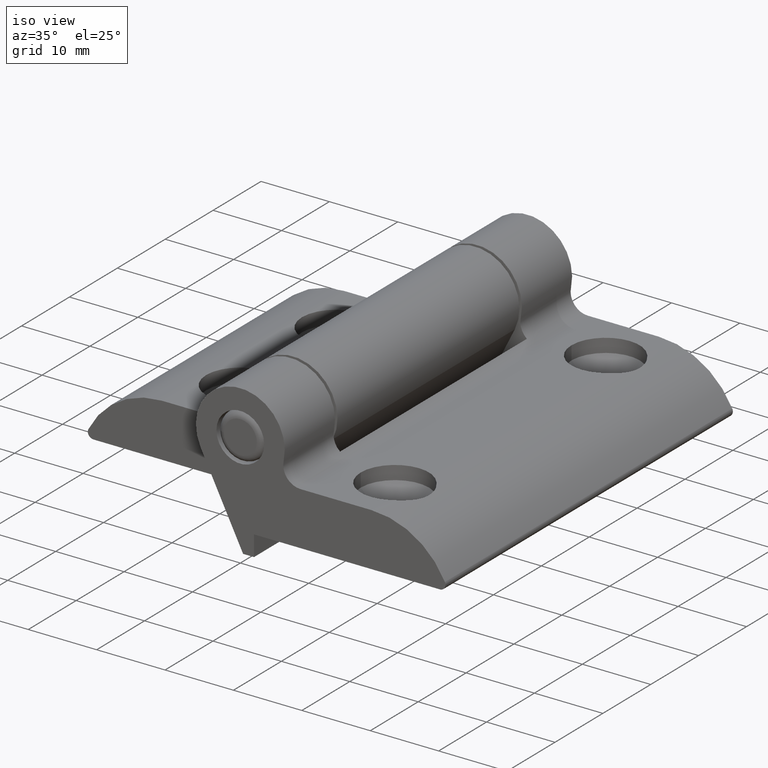
[diagram: clean part render]
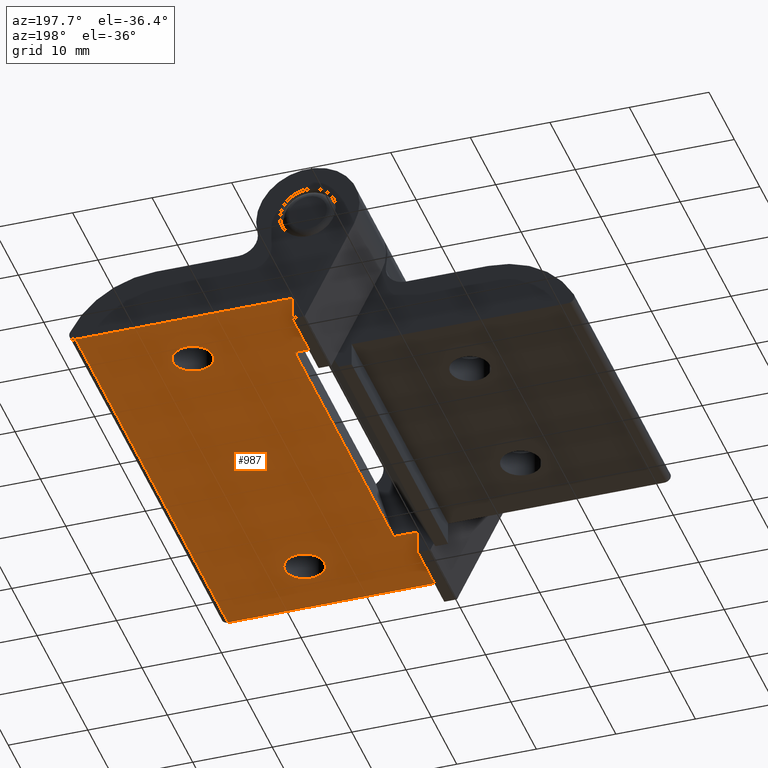
[diagram: tour spotlight — one face highlighted and labeled with its STEP entity id]
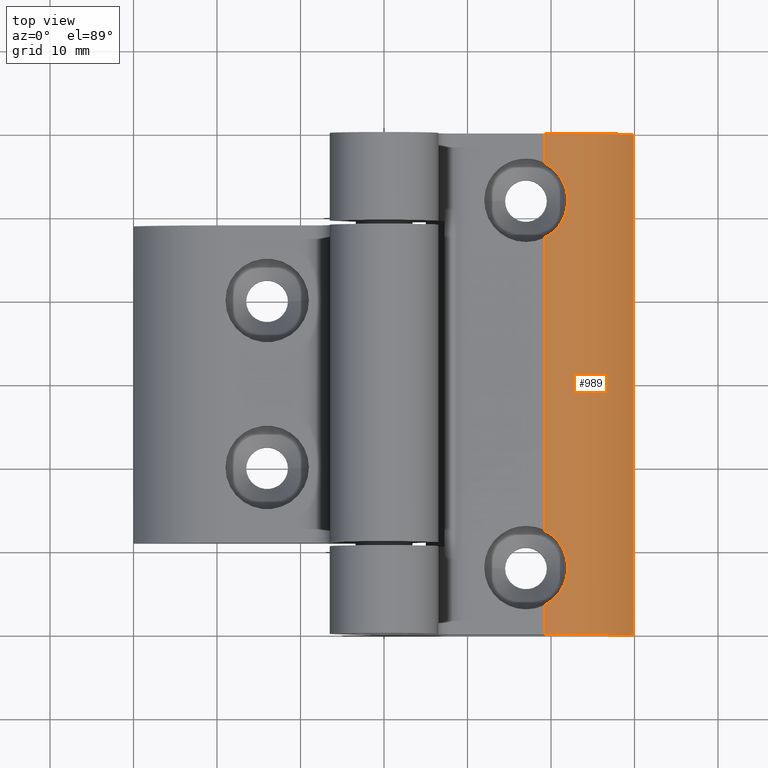
[diagram: tour spotlight — one face highlighted and labeled with its STEP entity id]
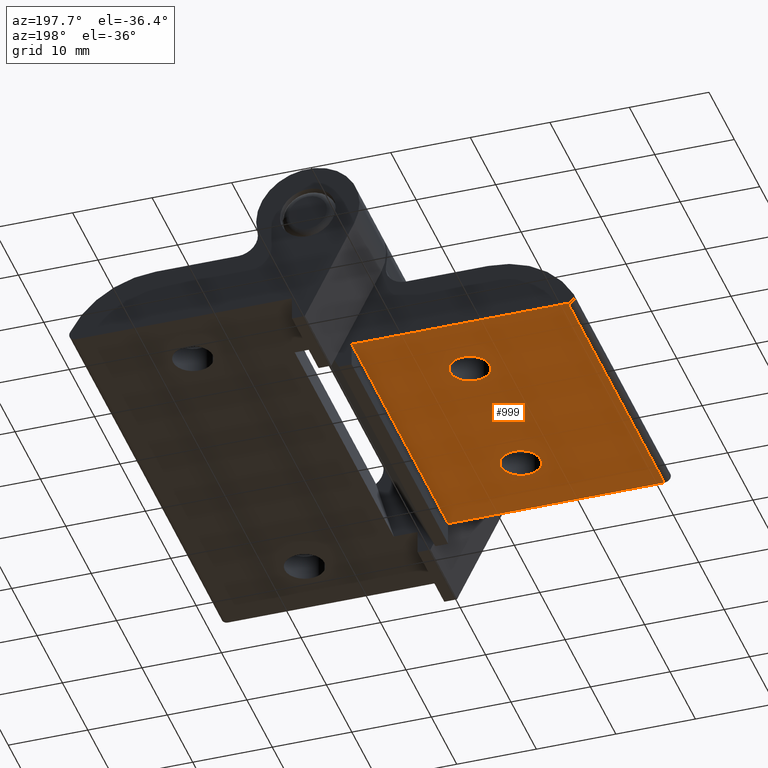
[diagram: tour spotlight — one face highlighted and labeled with its STEP entity id]
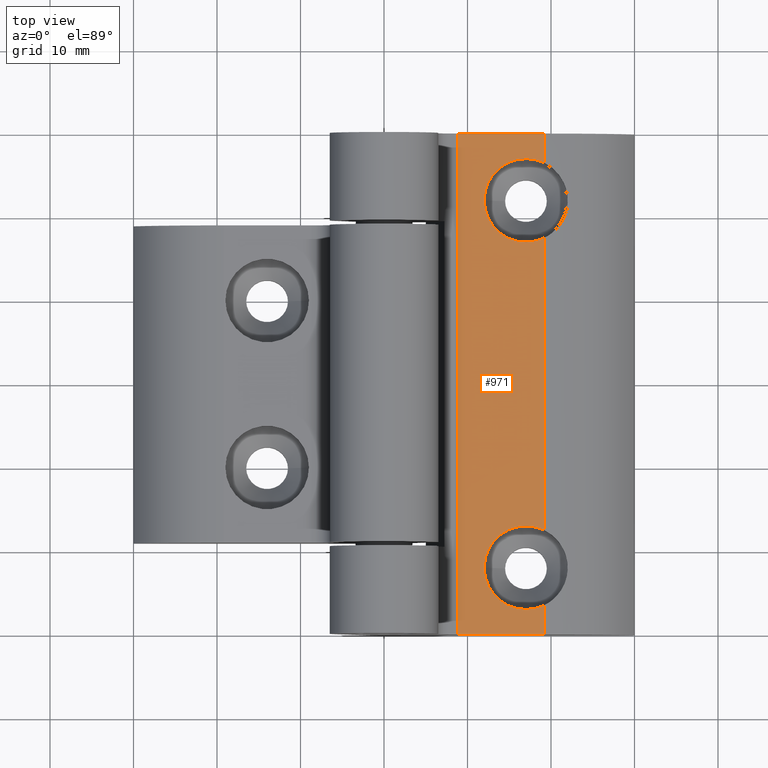
[diagram: tour spotlight — one face highlighted and labeled with its STEP entity id]
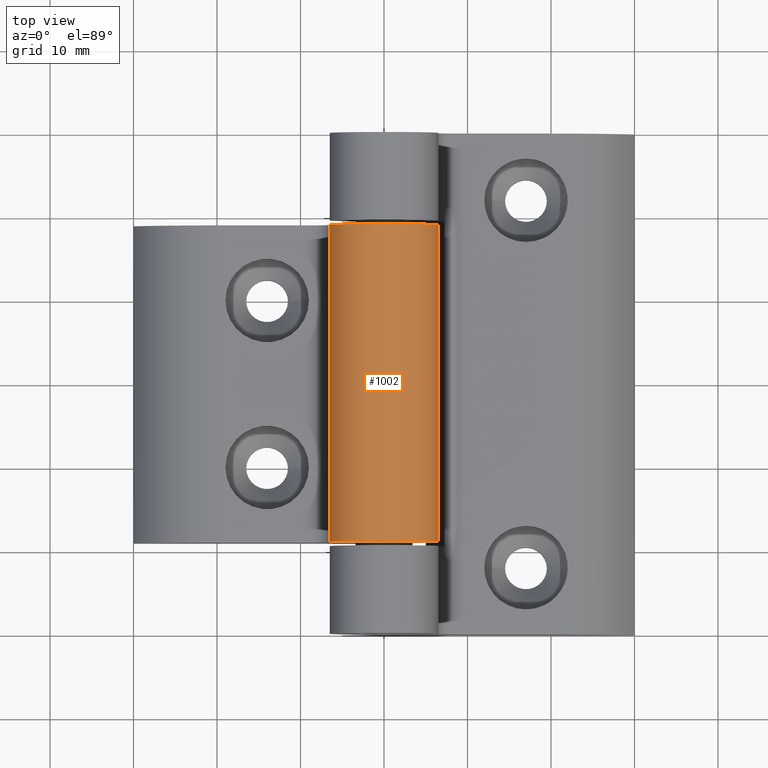
[diagram: tour spotlight — one face highlighted and labeled with its STEP entity id]
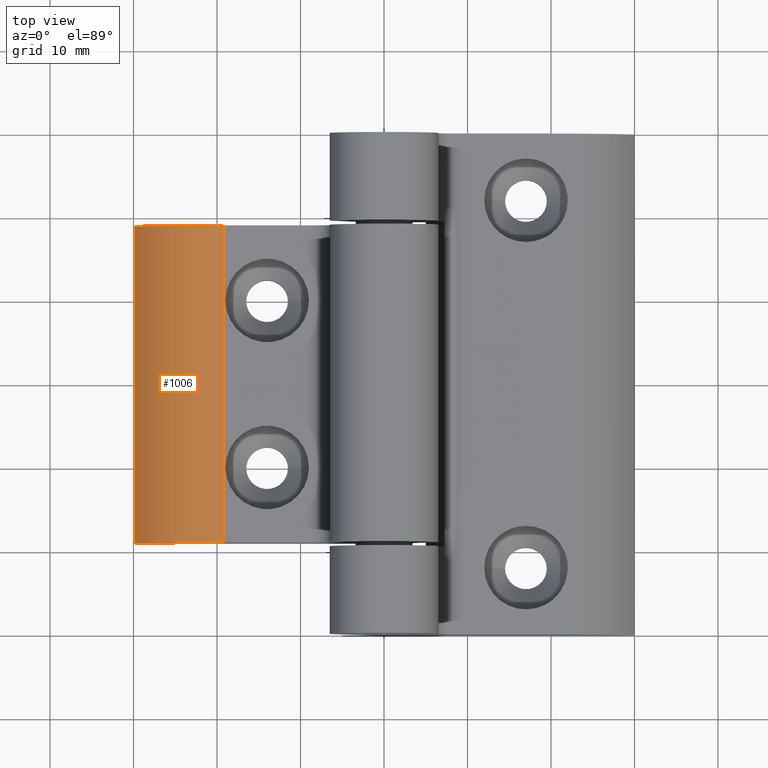
[diagram: tour spotlight — one face highlighted and labeled with its STEP entity id]
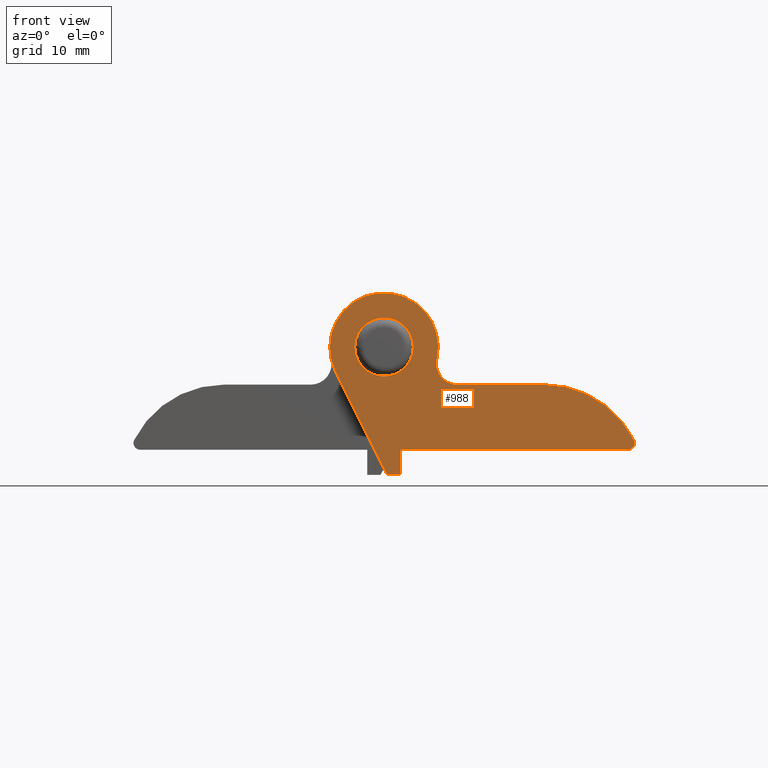
[diagram: tour spotlight — one face highlighted and labeled with its STEP entity id]
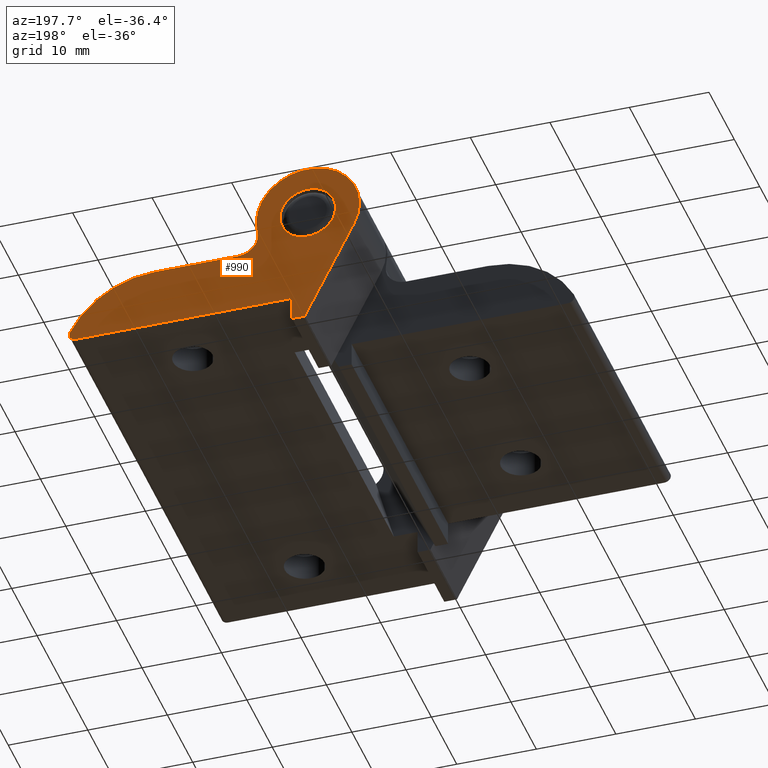
[diagram: tour spotlight — one face highlighted and labeled with its STEP entity id]
A machine part: a face-by-face anatomy tour. The part has 49 B-rep faces; the first image is the clean iso view, then the 8 largest visible faces are spotlighted one at a time (largest first), each with its STEP entity span.

Face 1 — auxiliary view, entity #987. In plain terms, the highlighted planar face has unit normal (0, 0, -1).
Definition (entity closure, byte-faithful):
#41=FACE_BOUND('',#180,.T.);
#42=FACE_BOUND('',#181,.T.);
#61=PLANE('',#1154);
#76=B_SPLINE_CURVE_WITH_KNOTS('',3,(#1733,#1734,#1735,#1736),
 .UNSPECIFIED.,.F.,.F.,(4,4),(-6.,0.),.UNSPECIFIED.);
#128=FACE_OUTER_BOUND('',#179,.T.);
#179=EDGE_LOOP('',(#792,#793,#794,#795,#796,#797,#798,#799));
#180=EDGE_LOOP('',(#800));
#181=EDGE_LOOP('',(#801));
#229=LINE('',#1617,#298);
#233=LINE('',#1631,#302);
#239=LINE('',#1646,#308);
#240=LINE('',#1653,#309);
#245=LINE('',#1662,#314);
#258=LINE('',#1759,#327);
#259=LINE('',#1760,#328);
#298=VECTOR('',#1283,10.);
#302=VECTOR('',#1295,10.);
#308=VECTOR('',#1307,10.);
#309=VECTOR('',#1314,10.);
#314=VECTOR('',#1321,10.);
#327=VECTOR('',#1368,10.);
#328=VECTOR('',#1369,10.);
#358=CIRCLE('',#1110,2.5);
#363=CIRCLE('',#1117,2.5);
#422=VERTEX_POINT('',#1538);
#427=VERTEX_POINT('',#1552);
#440=VERTEX_POINT('',#1614);
#441=VERTEX_POINT('',#1616);
#447=VERTEX_POINT('',#1630);
#453=VERTEX_POINT('',#1644);
#456=VERTEX_POINT('',#1652);
#459=VERTEX_POINT('',#1660);
#470=VERTEX_POINT('',#1725);
#471=VERTEX_POINT('',#1732);
#526=EDGE_CURVE('',#422,#422,#358,.T.);
#533=EDGE_CURVE('',#427,#427,#363,.T.);
#550=EDGE_CURVE('',#441,#440,#229,.T.);
#557=EDGE_CURVE('',#440,#447,#233,.T.);
#565=EDGE_CURVE('',#447,#453,#239,.T.);
#568=EDGE_CURVE('',#456,#441,#240,.T.);
#573=EDGE_CURVE('',#453,#459,#245,.T.);
#594=EDGE_CURVE('',#470,#471,#76,.T.);
#599=EDGE_CURVE('',#471,#459,#258,.T.);
#600=EDGE_CURVE('',#456,#470,#259,.T.);
#792=ORIENTED_EDGE('',*,*,#565,.T.);
#793=ORIENTED_EDGE('',*,*,#573,.T.);
#794=ORIENTED_EDGE('',*,*,#599,.F.);
#795=ORIENTED_EDGE('',*,*,#594,.F.);
#796=ORIENTED_EDGE('',*,*,#600,.F.);
#797=ORIENTED_EDGE('',*,*,#568,.T.);
#798=ORIENTED_EDGE('',*,*,#550,.T.);
#799=ORIENTED_EDGE('',*,*,#557,.T.);
#800=ORIENTED_EDGE('',*,*,#526,.T.);
#801=ORIENTED_EDGE('',*,*,#533,.T.);
#987=ADVANCED_FACE('',(#128,#41,#42),#61,.T.);
#1110=AXIS2_PLACEMENT_3D('',#1540,#1238,#1239);
#1117=AXIS2_PLACEMENT_3D('',#1554,#1254,#1255);
#1154=AXIS2_PLACEMENT_3D('',#1758,#1366,#1367);
#1238=DIRECTION('center_axis',(0.,0.,1.));
#1239=DIRECTION('ref_axis',(1.,0.,-2.13294600378817E-16));
#1254=DIRECTION('center_axis',(0.,0.,1.));
#1255=DIRECTION('ref_axis',(1.,0.,-2.13294600378817E-16));
#1283=DIRECTION('',(1.,0.,0.));
#1295=DIRECTION('',(0.,1.,0.));
#1307=DIRECTION('',(-1.,0.,0.));
#1314=DIRECTION('',(0.,1.,0.));
#1321=DIRECTION('',(0.,1.,0.));
#1366=DIRECTION('center_axis',(0.,0.,-1.));
#1367=DIRECTION('ref_axis',(-1.,0.,0.));
#1368=DIRECTION('',(-1.,0.,0.));
#1369=DIRECTION('',(1.,0.,0.));
#1538=CARTESIAN_POINT('',(14.5,22.,-12.3));
#1540=CARTESIAN_POINT('Origin',(17.,22.,-12.3));
#1552=CARTESIAN_POINT('',(14.5,-22.,-12.3));
#1554=CARTESIAN_POINT('Origin',(17.,-22.,-12.3));
#1614=CARTESIAN_POINT('',(5.,-19.5,-12.3));
#1616=CARTESIAN_POINT('',(2.,-19.5,-12.3));
#1617=CARTESIAN_POINT('',(15.3970287649531,-19.5,-12.3));
#1630=CARTESIAN_POINT('',(5.,19.5,-12.3));
#1631=CARTESIAN_POINT('',(5.,0.,-12.3));
#1644=CARTESIAN_POINT('',(2.,19.5,-12.3));
#1646=CARTESIAN_POINT('',(15.3970287649531,19.5,-12.3));
#1652=CARTESIAN_POINT('',(2.,-30.,-12.3));
#1653=CARTESIAN_POINT('',(2.,0.,-12.3));
#1660=CARTESIAN_POINT('',(2.,30.,-12.3));
#1662=CARTESIAN_POINT('',(2.,0.,-12.3));
#1725=CARTESIAN_POINT('',(29.1883954511527,-30.,-12.3));
#1732=CARTESIAN_POINT('',(29.1883954511527,30.,-12.3));
#1733=CARTESIAN_POINT('Ctrl Pts',(29.1883954511527,-30.,-12.3));
#1734=CARTESIAN_POINT('Ctrl Pts',(29.1883954511527,-10.,-12.3));
#1735=CARTESIAN_POINT('Ctrl Pts',(29.1883954511527,10.,-12.3));
#1736=CARTESIAN_POINT('Ctrl Pts',(29.1883954511527,30.,-12.3));
#1758=CARTESIAN_POINT('Origin',(30.,0.,-12.3));
#1759=CARTESIAN_POINT('',(30.,30.,-12.3));
#1760=CARTESIAN_POINT('',(30.,-30.,-12.3));

Face 2 — top view, entity #989. In plain terms, the highlighted cylindrical surface (partial cylindrical patch) has radius 12 mm, axis along (0, 1, 0).
Definition (entity closure, byte-faithful):
#73=B_SPLINE_CURVE_WITH_KNOTS('',3,(#1558,#1559,#1560,#1561,#1562,#1563,
#1564,#1565,#1566,#1567,#1568,#1569,#1570,#1571,#1572),.UNSPECIFIED.,.F.,
 .F.,(4,2,2,3,2,2,4),(-0.538665176497433,-0.380009468662877,-0.190004734331439,
0.,0.190004734331439,0.380009468662877,0.538665176480689),.UNSPECIFIED.);
#74=B_SPLINE_CURVE_WITH_KNOTS('',3,(#1580,#1581,#1582,#1583,#1584,#1585,
#1586,#1587,#1588,#1589,#1590,#1591,#1592,#1593,#1594),.UNSPECIFIED.,.F.,
 .F.,(4,2,2,3,2,2,4),(-0.538665176497433,-0.380009468662877,-0.190004734331439,
0.,0.190004734331439,0.380009468662877,0.53866517648069),.UNSPECIFIED.);
#79=B_SPLINE_CURVE_WITH_KNOTS('',3,(#1750,#1751,#1752,#1753),
 .UNSPECIFIED.,.F.,.F.,(4,4),(0.,6.),.UNSPECIFIED.);
#96=CYLINDRICAL_SURFACE('',#1157,12.);
#130=FACE_OUTER_BOUND('',#184,.T.);
#184=EDGE_LOOP('',(#813,#814,#815,#816,#817,#818,#819,#820));
#222=LINE('',#1600,#291);
#223=LINE('',#1602,#292);
#227=LINE('',#1609,#296);
#291=VECTOR('',#1272,10.);
#292=VECTOR('',#1273,10.);
#296=VECTOR('',#1277,10.);
#383=CIRCLE('',#1156,12.);
#384=CIRCLE('',#1158,12.);
#428=VERTEX_POINT('',#1556);
#429=VERTEX_POINT('',#1557);
#431=VERTEX_POINT('',#1578);
#432=VERTEX_POINT('',#1579);
#434=VERTEX_POINT('',#1601);
#437=VERTEX_POINT('',#1607);
#473=VERTEX_POINT('',#1744);
#474=VERTEX_POINT('',#1749);
#534=EDGE_CURVE('',#428,#429,#73,.T.);
#538=EDGE_CURVE('',#431,#432,#74,.T.);
#542=EDGE_CURVE('',#428,#432,#222,.T.);
#543=EDGE_CURVE('',#431,#434,#223,.T.);
#547=EDGE_CURVE('',#437,#429,#227,.T.);
#597=EDGE_CURVE('',#473,#474,#79,.T.);
#601=EDGE_CURVE('',#474,#437,#383,.T.);
#602=EDGE_CURVE('',#434,#473,#384,.T.);
#813=ORIENTED_EDGE('',*,*,#534,.T.);
#814=ORIENTED_EDGE('',*,*,#547,.F.);
#815=ORIENTED_EDGE('',*,*,#601,.F.);
#816=ORIENTED_EDGE('',*,*,#597,.F.);
#817=ORIENTED_EDGE('',*,*,#602,.F.);
#818=ORIENTED_EDGE('',*,*,#543,.F.);
#819=ORIENTED_EDGE('',*,*,#538,.T.);
#820=ORIENTED_EDGE('',*,*,#542,.F.);
#989=ADVANCED_FACE('',(#130),#96,.T.);
#1156=AXIS2_PLACEMENT_3D('',#1762,#1372,#1373);
#1157=AXIS2_PLACEMENT_3D('',#1763,#1374,#1375);
#1158=AXIS2_PLACEMENT_3D('',#1764,#1376,#1377);
#1272=DIRECTION('',(0.,1.,0.));
#1273=DIRECTION('',(0.,1.,0.));
#1277=DIRECTION('',(0.,1.,0.));
#1372=DIRECTION('center_axis',(0.,-1.,0.));
#1373=DIRECTION('ref_axis',(1.85037170770859E-16,0.,1.));
#1374=DIRECTION('center_axis',(0.,1.,0.));
#1375=DIRECTION('ref_axis',(1.85037170770859E-16,0.,1.));
#1376=DIRECTION('center_axis',(0.,1.,0.));
#1377=DIRECTION('ref_axis',(1.85037170770859E-16,0.,1.));
#1556=CARTESIAN_POINT('',(19.1851953323234,-17.5027873788765,-4.5));
#1557=CARTESIAN_POINT('',(19.1851953323234,-26.4972126211235,-4.5));
#1558=CARTESIAN_POINT('Ctrl Pts',(19.1851953323234,-17.5027873788765,-4.5));
#1559=CARTESIAN_POINT('Ctrl Pts',(19.6882031622358,-17.747198852082,-4.5));
#1560=CARTESIAN_POINT('Ctrl Pts',(20.1461495430295,-18.0783076583834,-4.53260818837594));
#1561=CARTESIAN_POINT('Ctrl Pts',(20.9688320175578,-18.8940406452905,-4.62472499509342));
#1562=CARTESIAN_POINT('Ctrl Pts',(21.3567859401317,-19.4569890827256,-4.69519138891653));
#1563=CARTESIAN_POINT('Ctrl Pts',(21.8724314606675,-20.6931347934501,-4.80179172498823));
#1564=CARTESIAN_POINT('Ctrl Pts',(22.,-21.3666508855619,-4.83480070110991));
#1565=CARTESIAN_POINT('Ctrl Pts',(22.,-22.,-4.83480070110991));
#1566=CARTESIAN_POINT('Ctrl Pts',(22.,-22.6333491144381,-4.83480070110991));
#1567=CARTESIAN_POINT('Ctrl Pts',(21.8724314606675,-23.3068652065499,-4.80179172498823));
#1568=CARTESIAN_POINT('Ctrl Pts',(21.3567859401317,-24.5430109172744,-4.69519138891653));
#1569=CARTESIAN_POINT('Ctrl Pts',(20.9688320175578,-25.1059593547095,-4.62472499509342));
#1570=CARTESIAN_POINT('Ctrl Pts',(20.146149543069,-25.9216923415774,-4.53260818838036));
#1571=CARTESIAN_POINT('Ctrl Pts',(19.6882031620076,-26.252801148029,-4.5));
#1572=CARTESIAN_POINT('Ctrl Pts',(19.1851953323234,-26.4972126211235,-4.5));
#1578=CARTESIAN_POINT('',(19.1851953323234,26.4972126211235,-4.5));
#1579=CARTESIAN_POINT('',(19.1851953323234,17.5027873788765,-4.5));
#1580=CARTESIAN_POINT('Ctrl Pts',(19.1851953323234,26.4972126211235,-4.5));
#1581=CARTESIAN_POINT('Ctrl Pts',(19.6882031622358,26.252801147918,-4.5));
#1582=CARTESIAN_POINT('Ctrl Pts',(20.1461495430295,25.9216923416166,-4.53260818837594));
#1583=CARTESIAN_POINT('Ctrl Pts',(20.9688320175578,25.1059593547095,-4.62472499509342));
#1584=CARTESIAN_POINT('Ctrl Pts',(21.3567859401317,24.5430109172744,-4.69519138891653));
#1585=CARTESIAN_POINT('Ctrl Pts',(21.8724314606675,23.3068652065499,-4.80179172498823));
#1586=CARTESIAN_POINT('Ctrl Pts',(22.,22.6333491144381,-4.83480070110991));
#1587=CARTESIAN_POINT('Ctrl Pts',(22.,22.,-4.83480070110991));
#1588=CARTESIAN_POINT('Ctrl Pts',(22.,21.3666508855619,-4.83480070110991));
#1589=CARTESIAN_POINT('Ctrl Pts',(21.8724314606675,20.6931347934501,-4.80179172498823));
#1590=CARTESIAN_POINT('Ctrl Pts',(21.3567859401317,19.4569890827256,-4.69519138891653));
#1591=CARTESIAN_POINT('Ctrl Pts',(20.9688320175578,18.8940406452905,-4.62472499509342));
#1592=CARTESIAN_POINT('Ctrl Pts',(20.146149543069,18.0783076584226,-4.53260818838036));
#1593=CARTESIAN_POINT('Ctrl Pts',(19.6882031620076,17.747198851971,-4.5));
#1594=CARTESIAN_POINT('Ctrl Pts',(19.1851953323234,17.5027873788765,-4.5));
#1600=CARTESIAN_POINT('',(19.1851953323234,0.,-4.5));
#1601=CARTESIAN_POINT('',(19.1851953323234,30.,-4.5));
#1602=CARTESIAN_POINT('',(19.1851953323234,0.,-4.5));
#1607=CARTESIAN_POINT('',(19.1851953323234,-30.,-4.5));
#1609=CARTESIAN_POINT('',(19.1851953323234,0.,-4.5));
#1744=CARTESIAN_POINT('',(29.9140261061395,30.,-11.1248543994776));
#1749=CARTESIAN_POINT('',(29.9140261061395,-30.,-11.1248543994776));
#1750=CARTESIAN_POINT('Ctrl Pts',(29.9140261061395,30.,-11.1248543994776));
#1751=CARTESIAN_POINT('Ctrl Pts',(29.9140261061395,10.,-11.1248543994776));
#1752=CARTESIAN_POINT('Ctrl Pts',(29.9140261061395,-10.,-11.1248543994776));
#1753=CARTESIAN_POINT('Ctrl Pts',(29.9140261061395,-30.,-11.1248543994776));
#1762=CARTESIAN_POINT('Origin',(19.1851953323234,-30.,-16.5));
#1763=CARTESIAN_POINT('Origin',(19.1851953323234,0.,-16.5));
#1764=CARTESIAN_POINT('Origin',(19.1851953323234,30.,-16.5));

Face 3 — auxiliary view, entity #999. In plain terms, the highlighted planar face has unit normal (-0, 0, -1).
Definition (entity closure, byte-faithful):
#45=FACE_BOUND('',#196,.T.);
#46=FACE_BOUND('',#197,.T.);
#64=PLANE('',#1185);
#82=B_SPLINE_CURVE_WITH_KNOTS('',3,(#1848,#1849,#1850,#1851),
 .UNSPECIFIED.,.F.,.F.,(4,4),(-3.8,0.),.UNSPECIFIED.);
#140=FACE_OUTER_BOUND('',#195,.T.);
#195=EDGE_LOOP('',(#878,#879,#880,#881));
#196=EDGE_LOOP('',(#882));
#197=EDGE_LOOP('',(#883));
#267=LINE('',#1875,#336);
#268=LINE('',#1877,#337);
#269=LINE('',#1878,#338);
#336=VECTOR('',#1439,10.);
#337=VECTOR('',#1440,10.);
#338=VECTOR('',#1441,10.);
#389=CIRCLE('',#1167,2.5);
#394=CIRCLE('',#1174,2.5);
#479=VERTEX_POINT('',#1778);
#484=VERTEX_POINT('',#1792);
#493=VERTEX_POINT('',#1840);
#494=VERTEX_POINT('',#1847);
#498=VERTEX_POINT('',#1874);
#499=VERTEX_POINT('',#1876);
#609=EDGE_CURVE('',#479,#479,#389,.T.);
#616=EDGE_CURVE('',#484,#484,#394,.T.);
#628=EDGE_CURVE('',#493,#494,#82,.T.);
#633=EDGE_CURVE('',#498,#493,#267,.T.);
#634=EDGE_CURVE('',#498,#499,#268,.T.);
#635=EDGE_CURVE('',#494,#499,#269,.T.);
#878=ORIENTED_EDGE('',*,*,#628,.F.);
#879=ORIENTED_EDGE('',*,*,#633,.F.);
#880=ORIENTED_EDGE('',*,*,#634,.T.);
#881=ORIENTED_EDGE('',*,*,#635,.F.);
#882=ORIENTED_EDGE('',*,*,#609,.T.);
#883=ORIENTED_EDGE('',*,*,#616,.T.);
#999=ADVANCED_FACE('',(#140,#45,#46),#64,.T.);
#1167=AXIS2_PLACEMENT_3D('',#1780,#1396,#1397);
#1174=AXIS2_PLACEMENT_3D('',#1794,#1412,#1413);
#1185=AXIS2_PLACEMENT_3D('',#1873,#1437,#1438);
#1396=DIRECTION('center_axis',(0.,0.,1.));
#1397=DIRECTION('ref_axis',(1.,0.,-2.13294600378817E-16));
#1412=DIRECTION('center_axis',(0.,0.,1.));
#1413=DIRECTION('ref_axis',(1.,0.,-2.13294600378817E-16));
#1437=DIRECTION('center_axis',(0.,0.,-1.));
#1438=DIRECTION('ref_axis',(-1.,0.,0.));
#1439=DIRECTION('',(1.,0.,0.));
#1440=DIRECTION('',(0.,1.,0.));
#1441=DIRECTION('',(-1.,0.,0.));
#1778=CARTESIAN_POINT('',(11.5,10.,-12.3));
#1780=CARTESIAN_POINT('Origin',(14.,10.,-12.3));
#1792=CARTESIAN_POINT('',(11.5,-10.,-12.3));
#1794=CARTESIAN_POINT('Origin',(14.,-10.,-12.3));
#1840=CARTESIAN_POINT('',(29.1883954511527,-19.,-12.3));
#1847=CARTESIAN_POINT('',(29.1883954511527,19.,-12.3));
#1848=CARTESIAN_POINT('Ctrl Pts',(29.1883954511527,-19.,-12.3));
#1849=CARTESIAN_POINT('Ctrl Pts',(29.1883954511527,-6.33333333333334,-12.3));
#1850=CARTESIAN_POINT('Ctrl Pts',(29.1883954511527,6.33333333333334,-12.3));
#1851=CARTESIAN_POINT('Ctrl Pts',(29.1883954511527,19.,-12.3));
#1873=CARTESIAN_POINT('Origin',(30.,0.,-12.3));
#1874=CARTESIAN_POINT('',(2.,-19.,-12.3));
#1875=CARTESIAN_POINT('',(30.,-19.,-12.3));
#1876=CARTESIAN_POINT('',(2.,19.,-12.3));
#1877=CARTESIAN_POINT('',(2.,0.,-12.3));
#1878=CARTESIAN_POINT('',(30.,19.,-12.3));

Face 4 — top view, entity #971. In plain terms, the highlighted planar face has unit normal (0, 0, 1).
Definition (entity closure, byte-faithful):
#51=PLANE('',#1124);
#112=FACE_OUTER_BOUND('',#161,.T.);
#161=EDGE_LOOP('',(#703,#704,#705,#706,#707,#708,#709,#710,#711,#712));
#222=LINE('',#1600,#291);
#223=LINE('',#1602,#292);
#224=LINE('',#1604,#293);
#225=LINE('',#1606,#294);
#226=LINE('',#1608,#295);
#227=LINE('',#1609,#296);
#291=VECTOR('',#1272,10.);
#292=VECTOR('',#1273,10.);
#293=VECTOR('',#1274,10.);
#294=VECTOR('',#1275,10.);
#295=VECTOR('',#1276,10.);
#296=VECTOR('',#1277,10.);
#364=CIRCLE('',#1119,5.);
#365=CIRCLE('',#1120,5.);
#366=CIRCLE('',#1122,5.);
#367=CIRCLE('',#1123,5.);
#428=VERTEX_POINT('',#1556);
#429=VERTEX_POINT('',#1557);
#430=VERTEX_POINT('',#1573);
#431=VERTEX_POINT('',#1578);
#432=VERTEX_POINT('',#1579);
#433=VERTEX_POINT('',#1595);
#434=VERTEX_POINT('',#1601);
#435=VERTEX_POINT('',#1603);
#436=VERTEX_POINT('',#1605);
#437=VERTEX_POINT('',#1607);
#535=EDGE_CURVE('',#430,#428,#364,.T.);
#537=EDGE_CURVE('',#429,#430,#365,.T.);
#539=EDGE_CURVE('',#433,#431,#366,.T.);
#541=EDGE_CURVE('',#432,#433,#367,.T.);
#542=EDGE_CURVE('',#428,#432,#222,.T.);
#543=EDGE_CURVE('',#431,#434,#223,.T.);
#544=EDGE_CURVE('',#435,#434,#224,.T.);
#545=EDGE_CURVE('',#435,#436,#225,.T.);
#546=EDGE_CURVE('',#437,#436,#226,.T.);
#547=EDGE_CURVE('',#437,#429,#227,.T.);
#703=ORIENTED_EDGE('',*,*,#537,.T.);
#704=ORIENTED_EDGE('',*,*,#535,.T.);
#705=ORIENTED_EDGE('',*,*,#542,.T.);
#706=ORIENTED_EDGE('',*,*,#541,.T.);
#707=ORIENTED_EDGE('',*,*,#539,.T.);
#708=ORIENTED_EDGE('',*,*,#543,.T.);
#709=ORIENTED_EDGE('',*,*,#544,.F.);
#710=ORIENTED_EDGE('',*,*,#545,.T.);
#711=ORIENTED_EDGE('',*,*,#546,.F.);
#712=ORIENTED_EDGE('',*,*,#547,.T.);
#971=ADVANCED_FACE('',(#112),#51,.T.);
#1119=AXIS2_PLACEMENT_3D('',#1574,#1258,#1259);
#1120=AXIS2_PLACEMENT_3D('',#1576,#1261,#1262);
#1122=AXIS2_PLACEMENT_3D('',#1596,#1265,#1266);
#1123=AXIS2_PLACEMENT_3D('',#1598,#1268,#1269);
#1124=AXIS2_PLACEMENT_3D('',#1599,#1270,#1271);
#1258=DIRECTION('center_axis',(-2.13294600378817E-16,0.,-1.));
#1259=DIRECTION('ref_axis',(1.,0.,-2.13294600378817E-16));
#1261=DIRECTION('center_axis',(-2.13294600378817E-16,0.,-1.));
#1262=DIRECTION('ref_axis',(1.,0.,-2.13294600378817E-16));
#1265=DIRECTION('center_axis',(-2.13294600378817E-16,0.,-1.));
#1266=DIRECTION('ref_axis',(1.,0.,-2.13294600378817E-16));
#1268=DIRECTION('center_axis',(-2.13294600378817E-16,0.,-1.));
#1269=DIRECTION('ref_axis',(1.,0.,-2.13294600378817E-16));
#1270=DIRECTION('center_axis',(2.13294600378817E-16,0.,1.));
#1271=DIRECTION('ref_axis',(1.,0.,-2.13294600378817E-16));
#1272=DIRECTION('',(0.,1.,0.));
#1273=DIRECTION('',(0.,1.,0.));
#1274=DIRECTION('',(1.,0.,-2.13294600378817E-16));
#1275=DIRECTION('',(0.,-1.,0.));
#1276=DIRECTION('',(-1.,0.,2.13294600378817E-16));
#1277=DIRECTION('',(0.,1.,0.));
#1556=CARTESIAN_POINT('',(19.1851953323234,-17.5027873788765,-4.5));
#1557=CARTESIAN_POINT('',(19.1851953323234,-26.4972126211235,-4.5));
#1573=CARTESIAN_POINT('',(12.,-22.,-4.5));
#1574=CARTESIAN_POINT('Origin',(17.,-22.,-4.5));
#1576=CARTESIAN_POINT('Origin',(17.,-22.,-4.5));
#1578=CARTESIAN_POINT('',(19.1851953323234,26.4972126211235,-4.5));
#1579=CARTESIAN_POINT('',(19.1851953323234,17.5027873788765,-4.5));
#1595=CARTESIAN_POINT('',(12.,22.,-4.5));
#1596=CARTESIAN_POINT('Origin',(17.,22.,-4.5));
#1598=CARTESIAN_POINT('Origin',(17.,22.,-4.5));
#1599=CARTESIAN_POINT('Origin',(8.77496438739212,0.,-4.5));
#1600=CARTESIAN_POINT('',(19.1851953323234,0.,-4.5));
#1601=CARTESIAN_POINT('',(19.1851953323234,30.,-4.5));
#1602=CARTESIAN_POINT('',(19.1851953323234,0.,-4.5));
#1603=CARTESIAN_POINT('',(8.77496438739212,30.,-4.5));
#1604=CARTESIAN_POINT('',(8.77496438739212,30.,-4.5));
#1605=CARTESIAN_POINT('',(8.77496438739212,-30.,-4.5));
#1606=CARTESIAN_POINT('',(8.77496438739212,0.,-4.5));
#1607=CARTESIAN_POINT('',(19.1851953323234,-30.,-4.5));
#1608=CARTESIAN_POINT('',(8.77496438739212,-30.,-4.5));
#1609=CARTESIAN_POINT('',(19.1851953323234,0.,-4.5));

Face 5 — top view, entity #1002. In plain terms, the highlighted cylindrical surface (partial cylindrical patch) has radius 6.5 mm, axis along (-0, -1, -0).
Definition (entity closure, byte-faithful):
#103=CYLINDRICAL_SURFACE('',#1192,6.5);
#143=FACE_OUTER_BOUND('',#201,.T.);
#201=EDGE_LOOP('',(#899,#900,#901,#902));
#275=LINE('',#1898,#344);
#276=LINE('',#1902,#345);
#344=VECTOR('',#1459,10.);
#345=VECTOR('',#1464,10.);
#404=CIRCLE('',#1189,6.5);
#406=CIRCLE('',#1193,6.5);
#502=VERTEX_POINT('',#1884);
#503=VERTEX_POINT('',#1886);
#507=VERTEX_POINT('',#1896);
#508=VERTEX_POINT('',#1900);
#639=EDGE_CURVE('',#502,#503,#404,.T.);
#645=EDGE_CURVE('',#502,#507,#275,.T.);
#646=EDGE_CURVE('',#508,#507,#406,.T.);
#647=EDGE_CURVE('',#503,#508,#276,.T.);
#899=ORIENTED_EDGE('',*,*,#645,.T.);
#900=ORIENTED_EDGE('',*,*,#646,.F.);
#901=ORIENTED_EDGE('',*,*,#647,.F.);
#902=ORIENTED_EDGE('',*,*,#639,.F.);
#1002=ADVANCED_FACE('',(#143),#103,.T.);
#1189=AXIS2_PLACEMENT_3D('',#1887,#1449,#1450);
#1192=AXIS2_PLACEMENT_3D('',#1899,#1460,#1461);
#1193=AXIS2_PLACEMENT_3D('',#1901,#1462,#1463);
#1449=DIRECTION('center_axis',(0.,-1.,0.));
#1450=DIRECTION('ref_axis',(-0.893929642887644,0.,-0.448207310925167));
#1459=DIRECTION('',(0.,1.,0.));
#1460=DIRECTION('center_axis',(0.,1.,0.));
#1461=DIRECTION('ref_axis',(-0.12004272317629,0.,0.992768726649072));
#1462=DIRECTION('center_axis',(0.,1.,0.));
#1463=DIRECTION('ref_axis',(-0.893929642887644,0.,-0.448207310925167));
#1464=DIRECTION('',(0.,1.,0.));
#1884=CARTESIAN_POINT('',(6.3374742797832,-19.,-1.44444444444445));
#1886=CARTESIAN_POINT('',(-5.81054267876969,-19.,-2.91334752101359));
#1887=CARTESIAN_POINT('Origin',(0.,-19.,-1.38777878078145E-15));
#1896=CARTESIAN_POINT('',(6.3374742797832,19.,-1.44444444444445));
#1898=CARTESIAN_POINT('',(6.3374742797832,0.,-1.44444444444445));
#1899=CARTESIAN_POINT('Origin',(0.,0.,-1.38777878078145E-15));
#1900=CARTESIAN_POINT('',(-5.81054267876969,19.,-2.91334752101359));
#1901=CARTESIAN_POINT('Origin',(0.,19.,-1.38777878078145E-15));
#1902=CARTESIAN_POINT('',(-5.81054267876969,0.,-2.91334752101359));

Face 6 — top view, entity #1006. In plain terms, the highlighted cylindrical surface (partial cylindrical patch) has radius 12 mm, axis along (-0, -1, -0).
Definition (entity closure, byte-faithful):
#85=B_SPLINE_CURVE_WITH_KNOTS('',3,(#1865,#1866,#1867,#1868),
 .UNSPECIFIED.,.F.,.F.,(4,4),(0.,3.8),.UNSPECIFIED.);
#104=CYLINDRICAL_SURFACE('',#1197,12.);
#147=FACE_OUTER_BOUND('',#205,.T.);
#205=EDGE_LOOP('',(#915,#916,#917,#918));
#282=LINE('',#1916,#351);
#351=VECTOR('',#1480,10.);
#402=CIRCLE('',#1187,12.);
#407=CIRCLE('',#1198,12.);
#496=VERTEX_POINT('',#1859);
#497=VERTEX_POINT('',#1864);
#500=VERTEX_POINT('',#1880);
#511=VERTEX_POINT('',#1914);
#631=EDGE_CURVE('',#496,#497,#85,.T.);
#636=EDGE_CURVE('',#497,#500,#402,.T.);
#653=EDGE_CURVE('',#511,#496,#407,.T.);
#654=EDGE_CURVE('',#500,#511,#282,.T.);
#915=ORIENTED_EDGE('',*,*,#631,.F.);
#916=ORIENTED_EDGE('',*,*,#653,.F.);
#917=ORIENTED_EDGE('',*,*,#654,.F.);
#918=ORIENTED_EDGE('',*,*,#636,.F.);
#1006=ADVANCED_FACE('',(#147),#104,.T.);
#1187=AXIS2_PLACEMENT_3D('',#1881,#1444,#1445);
#1197=AXIS2_PLACEMENT_3D('',#1913,#1476,#1477);
#1198=AXIS2_PLACEMENT_3D('',#1915,#1478,#1479);
#1444=DIRECTION('center_axis',(0.,-1.,0.));
#1445=DIRECTION('ref_axis',(1.85037170770859E-16,0.,1.));
#1476=DIRECTION('center_axis',(0.,1.,0.));
#1477=DIRECTION('ref_axis',(1.85037170770859E-16,0.,1.));
#1478=DIRECTION('center_axis',(0.,1.,0.));
#1479=DIRECTION('ref_axis',(1.85037170770859E-16,0.,1.));
#1480=DIRECTION('',(0.,1.,0.));
#1859=CARTESIAN_POINT('',(29.9140261061395,19.,-11.1248543994776));
#1864=CARTESIAN_POINT('',(29.9140261061395,-19.,-11.1248543994776));
#1865=CARTESIAN_POINT('Ctrl Pts',(29.9140261061395,19.,-11.1248543994776));
#1866=CARTESIAN_POINT('Ctrl Pts',(29.9140261061395,6.33333333333334,-11.1248543994776));
#1867=CARTESIAN_POINT('Ctrl Pts',(29.9140261061395,-6.33333333333334,-11.1248543994776));
#1868=CARTESIAN_POINT('Ctrl Pts',(29.9140261061395,-19.,-11.1248543994776));
#1880=CARTESIAN_POINT('',(19.1851953323234,-19.,-4.5));
#1881=CARTESIAN_POINT('Origin',(19.1851953323234,-19.,-16.5));
#1913=CARTESIAN_POINT('Origin',(19.1851953323234,0.,-16.5));
#1914=CARTESIAN_POINT('',(19.1851953323234,19.,-4.5));
#1915=CARTESIAN_POINT('Origin',(19.1851953323234,19.,-16.5));
#1916=CARTESIAN_POINT('',(19.1851953323234,0.,-4.5));

Face 7 — front view, entity #988. In plain terms, the highlighted planar face has unit normal (0, 1, 0).
Definition (entity closure, byte-faithful):
#43=FACE_BOUND('',#183,.T.);
#62=PLANE('',#1155);
#75=B_SPLINE_CURVE_WITH_KNOTS('',3,(#1726,#1727,#1728,#1729,#1730,#1731),
 .UNSPECIFIED.,.F.,.F.,(4,1,1,4),(0.228202346334161,0.285714285714286,0.571428571428571,
1.),.UNSPECIFIED.);
#80=B_SPLINE_CURVE_WITH_KNOTS('',3,(#1754,#1755,#1756,#1757),
 .UNSPECIFIED.,.F.,.F.,(4,4),(0.,0.228202346334161),.UNSPECIFIED.);
#129=FACE_OUTER_BOUND('',#182,.T.);
#182=EDGE_LOOP('',(#802,#803,#804,#805,#806,#807,#808,#809,#810,#811));
#183=EDGE_LOOP('',(#812));
#226=LINE('',#1608,#295);
#241=LINE('',#1655,#310);
#246=LINE('',#1665,#315);
#250=LINE('',#1673,#319);
#259=LINE('',#1760,#328);
#295=VECTOR('',#1276,10.);
#310=VECTOR('',#1315,10.);
#315=VECTOR('',#1324,10.);
#319=VECTOR('',#1332,10.);
#328=VECTOR('',#1369,10.);
#376=CIRCLE('',#1143,6.5);
#378=CIRCLE('',#1147,2.5);
#382=CIRCLE('',#1153,3.5);
#383=CIRCLE('',#1156,12.);
#436=VERTEX_POINT('',#1605);
#437=VERTEX_POINT('',#1607);
#456=VERTEX_POINT('',#1652);
#457=VERTEX_POINT('',#1654);
#460=VERTEX_POINT('',#1664);
#462=VERTEX_POINT('',#1672);
#464=VERTEX_POINT('',#1680);
#468=VERTEX_POINT('',#1697);
#469=VERTEX_POINT('',#1724);
#470=VERTEX_POINT('',#1725);
#474=VERTEX_POINT('',#1749);
#546=EDGE_CURVE('',#437,#436,#226,.T.);
#569=EDGE_CURVE('',#457,#456,#241,.T.);
#574=EDGE_CURVE('',#460,#457,#246,.T.);
#578=EDGE_CURVE('',#462,#460,#250,.T.);
#582=EDGE_CURVE('',#464,#462,#376,.T.);
#586=EDGE_CURVE('',#436,#464,#378,.T.);
#592=EDGE_CURVE('',#468,#468,#382,.T.);
#593=EDGE_CURVE('',#469,#470,#75,.T.);
#598=EDGE_CURVE('',#474,#469,#80,.T.);
#600=EDGE_CURVE('',#456,#470,#259,.T.);
#601=EDGE_CURVE('',#474,#437,#383,.T.);
#802=ORIENTED_EDGE('',*,*,#593,.F.);
#803=ORIENTED_EDGE('',*,*,#598,.F.);
#804=ORIENTED_EDGE('',*,*,#601,.T.);
#805=ORIENTED_EDGE('',*,*,#546,.T.);
#806=ORIENTED_EDGE('',*,*,#586,.T.);
#807=ORIENTED_EDGE('',*,*,#582,.T.);
#808=ORIENTED_EDGE('',*,*,#578,.T.);
#809=ORIENTED_EDGE('',*,*,#574,.T.);
#810=ORIENTED_EDGE('',*,*,#569,.T.);
#811=ORIENTED_EDGE('',*,*,#600,.T.);
#812=ORIENTED_EDGE('',*,*,#592,.T.);
#988=ADVANCED_FACE('',(#129,#43),#62,.F.);
#1143=AXIS2_PLACEMENT_3D('',#1681,#1340,#1341);
#1147=AXIS2_PLACEMENT_3D('',#1688,#1350,#1351);
#1153=AXIS2_PLACEMENT_3D('',#1699,#1364,#1365);
#1155=AXIS2_PLACEMENT_3D('',#1761,#1370,#1371);
#1156=AXIS2_PLACEMENT_3D('',#1762,#1372,#1373);
#1276=DIRECTION('',(-1.,0.,2.13294600378817E-16));
#1315=DIRECTION('',(1.85037170770859E-16,0.,1.));
#1324=DIRECTION('',(1.,0.,0.));
#1332=DIRECTION('',(0.448207310925167,0.,-0.893929642887644));
#1340=DIRECTION('center_axis',(0.,-1.,0.));
#1341=DIRECTION('ref_axis',(-0.893929642887644,0.,-0.448207310925167));
#1350=DIRECTION('center_axis',(0.,1.,0.));
#1351=DIRECTION('ref_axis',(0.,0.,1.));
#1364=DIRECTION('center_axis',(0.,1.,0.));
#1365=DIRECTION('ref_axis',(-1.,0.,0.));
#1369=DIRECTION('',(1.,0.,0.));
#1370=DIRECTION('center_axis',(0.,1.,0.));
#1371=DIRECTION('ref_axis',(0.,0.,1.));
#1372=DIRECTION('center_axis',(0.,-1.,0.));
#1373=DIRECTION('ref_axis',(1.85037170770859E-16,0.,1.));
#1605=CARTESIAN_POINT('',(8.77496438739212,-30.,-4.5));
#1607=CARTESIAN_POINT('',(19.1851953323234,-30.,-4.5));
#1608=CARTESIAN_POINT('',(8.77496438739212,-30.,-4.5));
#1652=CARTESIAN_POINT('',(2.,-30.,-12.3));
#1654=CARTESIAN_POINT('',(2.,-30.,-15.3));
#1655=CARTESIAN_POINT('',(2.,-30.,-12.3));
#1664=CARTESIAN_POINT('',(0.399999999999999,-30.,-15.3));
#1665=CARTESIAN_POINT('',(2.,-30.,-15.3));
#1672=CARTESIAN_POINT('',(-5.81054267876969,-30.,-2.91334752101359));
#1673=CARTESIAN_POINT('',(0.399999999999999,-30.,-15.3));
#1680=CARTESIAN_POINT('',(6.3374742797832,-30.,-1.44444444444445));
#1681=CARTESIAN_POINT('Origin',(0.,-30.,-1.38777878078145E-15));
#1688=CARTESIAN_POINT('Origin',(8.77496438739212,-30.,-2.));
#1697=CARTESIAN_POINT('',(3.5,-30.,-1.81640516048302E-15));
#1699=CARTESIAN_POINT('Origin',(0.,-30.,-1.38777878078145E-15));
#1724=CARTESIAN_POINT('',(30.,-30.,-11.4883954511528));
#1725=CARTESIAN_POINT('',(29.1883954511527,-30.,-12.3));
#1726=CARTESIAN_POINT('Ctrl Pts',(29.9997267076304,-30.,-11.4881665296363));
#1727=CARTESIAN_POINT('Ctrl Pts',(29.9997618771173,-30.,-11.5197990420696));
#1728=CARTESIAN_POINT('Ctrl Pts',(29.9889263534492,-30.,-11.7086007330608));
#1729=CARTESIAN_POINT('Ctrl Pts',(29.8135945585851,-30.,-12.116695867367));
#1730=CARTESIAN_POINT('Ctrl Pts',(29.4243687454637,-30.,-12.3));
#1731=CARTESIAN_POINT('Ctrl Pts',(29.1883954511527,-30.,-12.3));
#1749=CARTESIAN_POINT('',(29.9140261061395,-30.,-11.1248543994776));
#1754=CARTESIAN_POINT('Ctrl Pts',(29.9140261061395,-30.,-11.1248543994776));
#1755=CARTESIAN_POINT('Ctrl Pts',(29.9703080039166,-30.,-11.237193487896));
#1756=CARTESIAN_POINT('Ctrl Pts',(29.9995871581817,-30.,-11.362651486403));
#1757=CARTESIAN_POINT('Ctrl Pts',(29.9997267076304,-30.,-11.4881665296363));
#1760=CARTESIAN_POINT('',(30.,-30.,-12.3));
#1761=CARTESIAN_POINT('Origin',(9.6173661507457,-30.,-6.85004590996859));
#1762=CARTESIAN_POINT('Origin',(19.1851953323234,-30.,-16.5));

Face 8 — auxiliary view, entity #990. In plain terms, the highlighted planar face has unit normal (0, 1, 0).
Definition (entity closure, byte-faithful):
#44=FACE_BOUND('',#186,.T.);
#63=PLANE('',#1159);
#77=B_SPLINE_CURVE_WITH_KNOTS('',3,(#1738,#1739,#1740,#1741,#1742,#1743),
 .UNSPECIFIED.,.F.,.F.,(4,1,1,4),(-1.,-0.571428571428571,-0.285714285714286,
-0.228202346334161),.UNSPECIFIED.);
#78=B_SPLINE_CURVE_WITH_KNOTS('',3,(#1745,#1746,#1747,#1748),
 .UNSPECIFIED.,.F.,.F.,(4,4),(-0.228202346334161,0.),.UNSPECIFIED.);
#131=FACE_OUTER_BOUND('',#185,.T.);
#185=EDGE_LOOP('',(#821,#822,#823,#824,#825,#826,#827,#828,#829,#830));
#186=EDGE_LOOP('',(#831,#832));
#224=LINE('',#1604,#293);
#244=LINE('',#1661,#313);
#249=LINE('',#1670,#318);
#253=LINE('',#1678,#322);
#258=LINE('',#1759,#327);
#293=VECTOR('',#1274,10.);
#313=VECTOR('',#1320,10.);
#318=VECTOR('',#1329,10.);
#322=VECTOR('',#1337,10.);
#327=VECTOR('',#1368,10.);
#377=CIRCLE('',#1145,6.5);
#379=CIRCLE('',#1148,2.5);
#380=CIRCLE('',#1150,3.5);
#381=CIRCLE('',#1151,3.5);
#384=CIRCLE('',#1158,12.);
#434=VERTEX_POINT('',#1601);
#435=VERTEX_POINT('',#1603);
#458=VERTEX_POINT('',#1658);
#459=VERTEX_POINT('',#1660);
#461=VERTEX_POINT('',#1668);
#463=VERTEX_POINT('',#1676);
#465=VERTEX_POINT('',#1684);
#466=VERTEX_POINT('',#1691);
#467=VERTEX_POINT('',#1692);
#471=VERTEX_POINT('',#1732);
#472=VERTEX_POINT('',#1737);
#473=VERTEX_POINT('',#1744);
#544=EDGE_CURVE('',#435,#434,#224,.T.);
#572=EDGE_CURVE('',#459,#458,#244,.T.);
#577=EDGE_CURVE('',#458,#461,#249,.T.);
#581=EDGE_CURVE('',#461,#463,#253,.T.);
#585=EDGE_CURVE('',#463,#465,#377,.T.);
#587=EDGE_CURVE('',#465,#435,#379,.T.);
#588=EDGE_CURVE('',#466,#467,#380,.T.);
#589=EDGE_CURVE('',#467,#466,#381,.T.);
#595=EDGE_CURVE('',#471,#472,#77,.T.);
#596=EDGE_CURVE('',#472,#473,#78,.T.);
#599=EDGE_CURVE('',#471,#459,#258,.T.);
#602=EDGE_CURVE('',#434,#473,#384,.T.);
#821=ORIENTED_EDGE('',*,*,#595,.F.);
#822=ORIENTED_EDGE('',*,*,#599,.T.);
#823=ORIENTED_EDGE('',*,*,#572,.T.);
#824=ORIENTED_EDGE('',*,*,#577,.T.);
#825=ORIENTED_EDGE('',*,*,#581,.T.);
#826=ORIENTED_EDGE('',*,*,#585,.T.);
#827=ORIENTED_EDGE('',*,*,#587,.T.);
#828=ORIENTED_EDGE('',*,*,#544,.T.);
#829=ORIENTED_EDGE('',*,*,#602,.T.);
#830=ORIENTED_EDGE('',*,*,#596,.F.);
#831=ORIENTED_EDGE('',*,*,#588,.T.);
#832=ORIENTED_EDGE('',*,*,#589,.T.);
#990=ADVANCED_FACE('',(#131,#44),#63,.T.);
#1145=AXIS2_PLACEMENT_3D('',#1686,#1346,#1347);
#1148=AXIS2_PLACEMENT_3D('',#1689,#1352,#1353);
#1150=AXIS2_PLACEMENT_3D('',#1693,#1356,#1357);
#1151=AXIS2_PLACEMENT_3D('',#1694,#1358,#1359);
#1158=AXIS2_PLACEMENT_3D('',#1764,#1376,#1377);
#1159=AXIS2_PLACEMENT_3D('',#1765,#1378,#1379);
#1274=DIRECTION('',(1.,0.,-2.13294600378817E-16));
#1320=DIRECTION('',(-1.85037170770859E-16,0.,-1.));
#1329=DIRECTION('',(-1.,0.,0.));
#1337=DIRECTION('',(-0.448207310925167,0.,0.893929642887644));
#1346=DIRECTION('center_axis',(0.,1.,0.));
#1347=DIRECTION('ref_axis',(-0.893929642887644,0.,-0.448207310925167));
#1352=DIRECTION('center_axis',(0.,-1.,0.));
#1353=DIRECTION('ref_axis',(0.,0.,1.));
#1356=DIRECTION('center_axis',(0.,-1.,0.));
#1357=DIRECTION('ref_axis',(-1.,0.,0.));
#1358=DIRECTION('center_axis',(0.,-1.,0.));
#1359=DIRECTION('ref_axis',(-1.,0.,0.));
#1368=DIRECTION('',(-1.,0.,0.));
#1376=DIRECTION('center_axis',(0.,1.,0.));
#1377=DIRECTION('ref_axis',(1.85037170770859E-16,0.,1.));
#1378=DIRECTION('center_axis',(0.,1.,0.));
#1379=DIRECTION('ref_axis',(0.,0.,1.));
#1601=CARTESIAN_POINT('',(19.1851953323234,30.,-4.5));
#1603=CARTESIAN_POINT('',(8.77496438739212,30.,-4.5));
#1604=CARTESIAN_POINT('',(8.77496438739212,30.,-4.5));
#1658=CARTESIAN_POINT('',(2.,30.,-15.3));
#1660=CARTESIAN_POINT('',(2.,30.,-12.3));
#1661=CARTESIAN_POINT('',(2.,30.,-12.3));
#1668=CARTESIAN_POINT('',(0.399999999999999,30.,-15.3));
#1670=CARTESIAN_POINT('',(2.,30.,-15.3));
#1676=CARTESIAN_POINT('',(-5.81054267876969,30.,-2.91334752101359));
#1678=CARTESIAN_POINT('',(0.399999999999999,30.,-15.3));
#1684=CARTESIAN_POINT('',(6.3374742797832,30.,-1.44444444444445));
#1686=CARTESIAN_POINT('Origin',(0.,30.,-1.38777878078145E-15));
#1689=CARTESIAN_POINT('Origin',(8.77496438739212,30.,-2.));
#1691=CARTESIAN_POINT('',(-3.5,30.,-1.38777878078145E-15));
#1692=CARTESIAN_POINT('',(3.5,30.,-1.81640516048302E-15));
#1693=CARTESIAN_POINT('Origin',(0.,30.,-1.38777878078145E-15));
#1694=CARTESIAN_POINT('Origin',(0.,30.,-1.38777878078145E-15));
#1732=CARTESIAN_POINT('',(29.1883954511527,30.,-12.3));
#1737=CARTESIAN_POINT('',(30.,30.,-11.4883954511528));
#1738=CARTESIAN_POINT('Ctrl Pts',(29.1883954511527,30.,-12.3));
#1739=CARTESIAN_POINT('Ctrl Pts',(29.4243687454637,30.,-12.3));
#1740=CARTESIAN_POINT('Ctrl Pts',(29.8135945585851,30.,-12.116695867367));
#1741=CARTESIAN_POINT('Ctrl Pts',(29.9889263534492,30.,-11.7086007330608));
#1742=CARTESIAN_POINT('Ctrl Pts',(29.9997618771173,30.,-11.5197990420696));
#1743=CARTESIAN_POINT('Ctrl Pts',(29.9997267076304,30.,-11.4881665296363));
#1744=CARTESIAN_POINT('',(29.9140261061395,30.,-11.1248543994776));
#1745=CARTESIAN_POINT('Ctrl Pts',(29.9997267076304,30.,-11.4881665296363));
#1746=CARTESIAN_POINT('Ctrl Pts',(29.9995871581817,30.,-11.362651486403));
#1747=CARTESIAN_POINT('Ctrl Pts',(29.9703080039166,30.,-11.237193487896));
#1748=CARTESIAN_POINT('Ctrl Pts',(29.9140261061395,30.,-11.1248543994776));
#1759=CARTESIAN_POINT('',(30.,30.,-12.3));
#1764=CARTESIAN_POINT('Origin',(19.1851953323234,30.,-16.5));
#1765=CARTESIAN_POINT('Origin',(9.6173661507457,30.,-6.85004590996859));